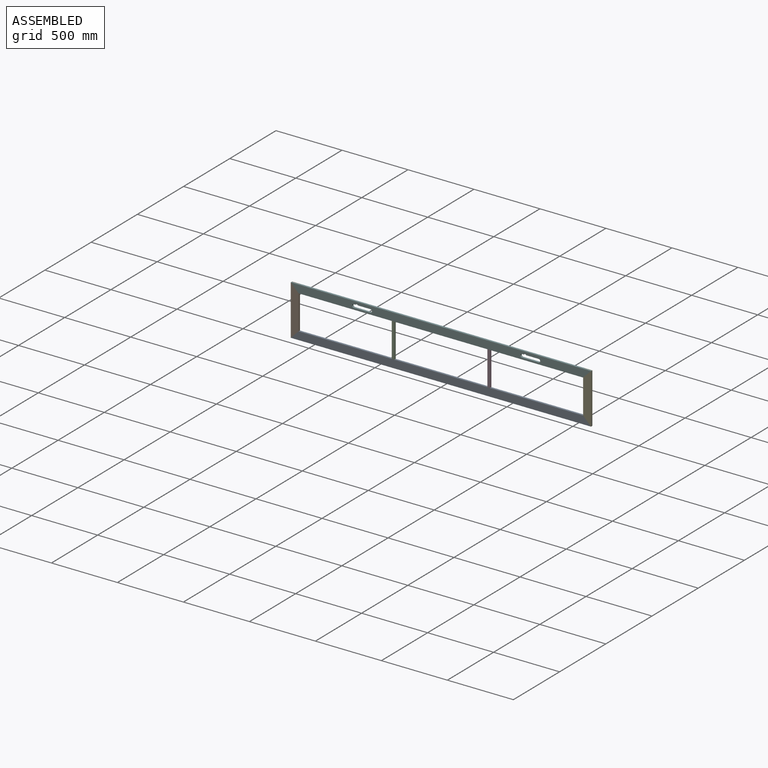
[diagram: assembled view]
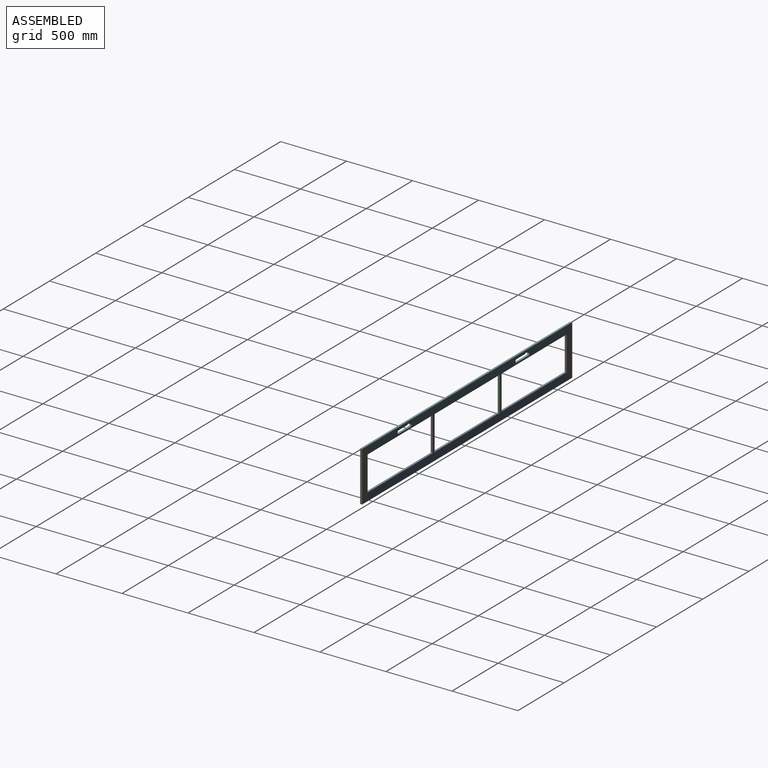
[diagram: assembled view, second angle]
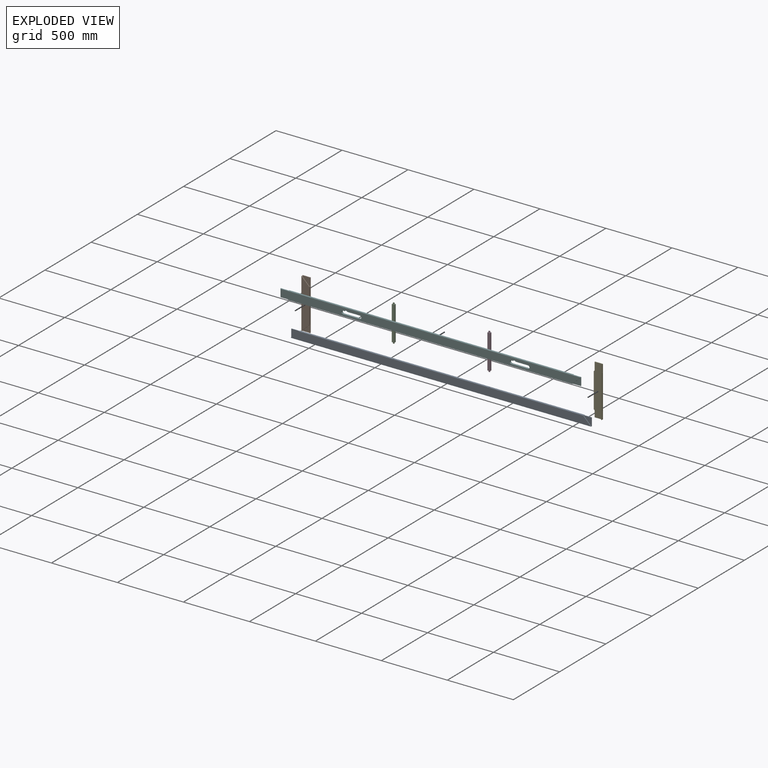
[diagram: exploded view]
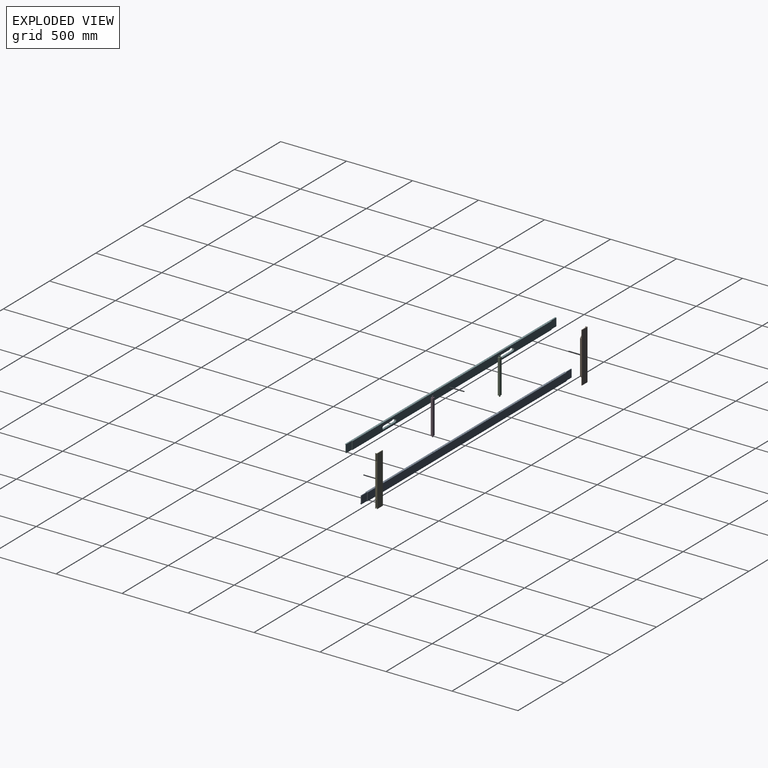
[diagram: exploded view, second angle]
ASSEMBLY  parts=6 mates=5
PART A: 24 faces, bbox 2275x15x60 mm
  f0: plane 2275x15mm, normal (0,0,-1), area 32825mm2, adj f2,f3,f4,f5,f6,f7,f8,f9
  f1: plane 2275x15mm, normal (0,0,1), area 33525mm2, adj f2,f3,f4,f5,f6,f8,f10,f11
  f2: plane 2155x60mm, normal (0,1,0), area 129300mm2, adj f0,f1,f10,f12
  f3: plane 60x5mm, normal (-1,0,0), area 300mm2, adj f0,f1,f7,f11
  f4: plane 60x5mm, normal (1,0,0), area 300mm2, adj f0,f1,f9,f13
  f5: plane 2275x60mm, normal (0,-1,0), area 132900mm2, adj f0,f1,f6,f8
  f6: plane 60x60mm, normal (-0.71,0,-0.71), area 424.3mm2, adj f0,f1,f5,f7
  f7: plane 60x60mm, normal (0,-1,0), area 1800mm2, adj f0,f3,f6
  f8: plane 60x60mm, normal (0.71,0,-0.71), area 424.3mm2, adj f0,f1,f5,f9
  f9: plane 60x60mm, normal (0,-1,0), area 1800mm2, adj f0,f4,f8
  f10: plane 60x5mm, normal (-1,0,0), area 300mm2, adj f0,f1,f2,f11
  f11: plane 60x60mm, normal (0,1,0), area 3600mm2, adj f0,f1,f3,f10
  f12: plane 60x5mm, normal (1,0,0), area 300mm2, adj f0,f1,f2,f13
  f13: plane 60x60mm, normal (0,1,0), area 3600mm2, adj f0,f1,f4,f12
  f14: plane 10x10mm, normal (0,-1,0), area 100mm2, adj f0,f15,f17,f18
  f15: plane 10x5mm, normal (-1,0,0), area 50mm2, adj f0,f14,f16,f18
  f16: plane 10x10mm, normal (0,1,0), area 100mm2, adj f0,f15,f17,f18
  f17: plane 10x5mm, normal (1,0,0), area 50mm2, adj f0,f14,f16,f18
  f18: plane 10x5mm, normal (0,0,-1), area 50mm2, adj f14,f15,f16,f17
  f19: plane 10x5mm, normal (1,0,0), area 50mm2, adj f0,f20,f22,f23
  f20: plane 10x10mm, normal (0,-1,0), area 100mm2, adj f0,f19,f21,f23
  f21: plane 10x5mm, normal (-1,0,0), area 50mm2, adj f0,f20,f22,f23
  f22: plane 10x10mm, normal (0,1,0), area 100mm2, adj f0,f19,f21,f23
  f23: plane 10x5mm, normal (0,0,-1), area 50mm2, adj f19,f20,f21,f22
PART B: 14 faces, bbox 60x15x380 mm
  f0: plane 60x5mm, normal (0,0,1), area 300mm2, adj f2,f4,f5,f13
  f1: plane 60x5mm, normal (0,0,-1), area 300mm2, adj f2,f4,f5,f10
  f2: plane 380x15mm, normal (1,0,0), area 4500mm2, adj f0,f1,f3,f5,f6,f7,f8,f10
  f3: plane 380x60mm, normal (0,-1,0), area 19200mm2, adj f2,f4,f6,f7
  f4: plane 380x15mm, normal (-1,0,0), area 5100mm2, adj f0,f1,f3,f5,f6,f7,f8,f9
  f5: plane 380x60mm, normal (0,1,0), area 22800mm2, adj f0,f1,f2,f4
  f6: plane 60x60mm, normal (0.71,0,-0.71), area 424.3mm2, adj f2,f3,f4,f9
  f7: plane 60x60mm, normal (0.71,0,0.71), area 424.3mm2, adj f2,f3,f4,f11
  f8: plane 60x5mm, normal (0,0,-1), area 300mm2, adj f2,f4,f9,f10
  f9: plane 60x60mm, normal (0,1,0), area 1800mm2, adj f4,f6,f8
  f10: plane 60x60mm, normal (0,-1,0), area 3600mm2, adj f1,f2,f4,f8
  f11: plane 60x60mm, normal (0,1,0), area 1800mm2, adj f4,f7,f12
  f12: plane 60x5mm, normal (0,0,1), area 300mm2, adj f2,f4,f11,f13
  f13: plane 60x60mm, normal (0,-1,0), area 3600mm2, adj f0,f2,f4,f12
PART C: 16 faces, bbox 20x15x280 mm
  f0: plane 10x5mm, normal (0,0,-1), area 50mm2, adj f1,f2,f14,f15
  f1: plane 10x10mm, normal (0,-1,0), area 100mm2, adj f0,f10,f14,f15
  f2: plane 10x10mm, normal (0,1,0), area 100mm2, adj f0,f10,f14,f15
  f3: plane 10x5mm, normal (0,0,1), area 50mm2, adj f4,f5,f12,f13
  f4: plane 10x10mm, normal (0,-1,0), area 100mm2, adj f3,f11,f12,f13
  f5: plane 10x10mm, normal (0,1,0), area 100mm2, adj f3,f11,f12,f13
  f6: plane 260x15mm, normal (1,0,0), area 3900mm2, adj f7,f9,f10,f11
  f7: plane 260x20mm, normal (0,1,0), area 5200mm2, adj f6,f8,f10,f11
  f8: plane 260x15mm, normal (-1,0,0), area 3900mm2, adj f7,f9,f10,f11
  f9: plane 260x20mm, normal (0,-1,0), area 5200mm2, adj f6,f8,f10,f11
  f10: plane 20x15mm, normal (0,0,-1), area 250mm2, adj f1,f2,f6,f7,f8,f9,f14,f15
  f11: plane 20x15mm, normal (0,0,1), area 250mm2, adj f4,f5,f6,f7,f8,f9,f12,f13
  f12: plane 10x5mm, normal (1,0,0), area 50mm2, adj f3,f4,f5,f11
  f13: plane 10x5mm, normal (-1,0,0), area 50mm2, adj f3,f4,f5,f11
  f14: plane 10x5mm, normal (1,0,0), area 50mm2, adj f0,f1,f2,f10
  f15: plane 10x5mm, normal (-1,0,0), area 50mm2, adj f0,f1,f2,f10
PART D: same geometry as C
PART E: same geometry as B
PART F: 36 faces, bbox 2275x15x60 mm
  f0: plane 2155x60mm, normal (0,1,0), area 121928.5mm2, adj f2,f3,f10,f12,f24,f25,f26,f27
  f1: plane 2275x60mm, normal (0,-1,0), area 125528.5mm2, adj f2,f3,f6,f8,f24,f25,f26,f27
  f2: plane 2275x15mm, normal (0,0,-1), area 32825mm2, adj f0,f1,f4,f5,f6,f7,f8,f9
  f3: plane 2275x15mm, normal (0,0,1), area 33525mm2, adj f0,f1,f4,f5,f6,f8,f10,f11
  f4: plane 60x5mm, normal (-1,0,0), area 300mm2, adj f2,f3,f7,f11
  f5: plane 60x5mm, normal (1,0,0), area 300mm2, adj f2,f3,f9,f13
  f6: plane 60x60mm, normal (-0.71,0,-0.71), area 424.3mm2, adj f1,f2,f3,f7
  f7: plane 60x60mm, normal (0,-1,0), area 1800mm2, adj f2,f4,f6
  f8: plane 60x60mm, normal (0.71,0,-0.71), area 424.3mm2, adj f1,f2,f3,f9
  f9: plane 60x60mm, normal (0,-1,0), area 1800mm2, adj f2,f5,f8
  f10: plane 60x5mm, normal (-1,0,0), area 300mm2, adj f0,f2,f3,f11
  f11: plane 60x60mm, normal (0,1,0), area 3600mm2, adj f2,f3,f4,f10
  f12: plane 60x5mm, normal (1,0,0), area 300mm2, adj f0,f2,f3,f13
  f13: plane 60x60mm, normal (0,1,0), area 3600mm2, adj f2,f3,f5,f12
  f14: plane 10x10mm, normal (0,-1,0), area 100mm2, adj f2,f15,f17,f18
  f15: plane 10x5mm, normal (-1,0,0), area 50mm2, adj f2,f14,f16,f18
  f16: plane 10x10mm, normal (0,1,0), area 100mm2, adj f2,f15,f17,f18
  f17: plane 10x5mm, normal (1,0,0), area 50mm2, adj f2,f14,f16,f18
  f18: plane 10x5mm, normal (0,0,-1), area 50mm2, adj f14,f15,f16,f17
  f19: plane 10x5mm, normal (1,0,0), area 50mm2, adj f2,f20,f22,f23
  f20: plane 10x10mm, normal (0,-1,0), area 100mm2, adj f2,f19,f21,f23
  f21: plane 10x5mm, normal (-1,0,0), area 50mm2, adj f2,f20,f22,f23
  f22: plane 10x10mm, normal (0,1,0), area 100mm2, adj f2,f19,f21,f23
  f23: plane 10x5mm, normal (0,0,-1), area 50mm2, adj f19,f20,f21,f22
  f24: plane 92.5x15mm, normal (0,0,-1), area 1387.5mm2, adj f0,f1,f25,f29
  f25: cylinder r=12.5mm len=20mm, axis (0,-1,0), area 347.7mm2, adj f0,f1,f24,f26
  f26: plane 15x12.5mm, normal (0,0,-1), area 187.5mm2, adj f0,f1,f25,f27
  f27: cylinder r=12.5mm len=25mm, axis (0,-1,0), area 589mm2, adj f0,f1,f26,f28
  f28: plane 125x15mm, normal (0,0,1), area 1875mm2, adj f0,f1,f27,f29
  f29: cylinder r=12.5mm len=25mm, axis (0,-1,0), area 589mm2, adj f0,f1,f24,f28
  f30: plane 15x12.5mm, normal (0,0,-1), area 187.5mm2, adj f0,f1,f31,f35
  f31: cylinder r=12.5mm len=25mm, axis (0,-1,0), area 589mm2, adj f0,f1,f30,f32
  f32: plane 125x15mm, normal (0,0,1), area 1875mm2, adj f0,f1,f31,f33
  f33: cylinder r=12.5mm len=25mm, axis (0,-1,0), area 589mm2, adj f0,f1,f32,f34
  f34: plane 92.5x15mm, normal (0,0,-1), area 1387.5mm2, adj f0,f1,f33,f35
  f35: cylinder r=12.5mm len=20mm, axis (0,-1,0), area 347.7mm2, adj f0,f1,f30,f34
PLACE A rot(axis=(0,1,0),180deg) t=(-130.37,15,-342.54)mm
PLACE B t=(-1086.8,15,-97.32)mm
PLACE C t=(-352.5,15,-102.97)mm
PLACE D t=(372.5,15,-102.97)mm
PLACE E rot(axis=(0,1,0),180deg) t=(1086.8,15,97.32)mm
PLACE F t=(130.37,15,342.54)mm
MATE fastened A.f0 <-> D.f10  axis (0,0,1) through (357.5,5,-130)mm
MATE fastened B.f3 <-> A.f5  axis (0,-1,0) through (-1107.5,0,-160)mm
MATE fastened F.f1 <-> B.f3  axis (0,-1,0) through (-1137.5,0,190)mm
MATE fastened A.f0 <-> C.f10  axis (0,0,1) through (-367.5,5,-130)mm
MATE fastened E.f3 <-> A.f5  axis (0,-1,0) through (1107.5,0,-160)mm
